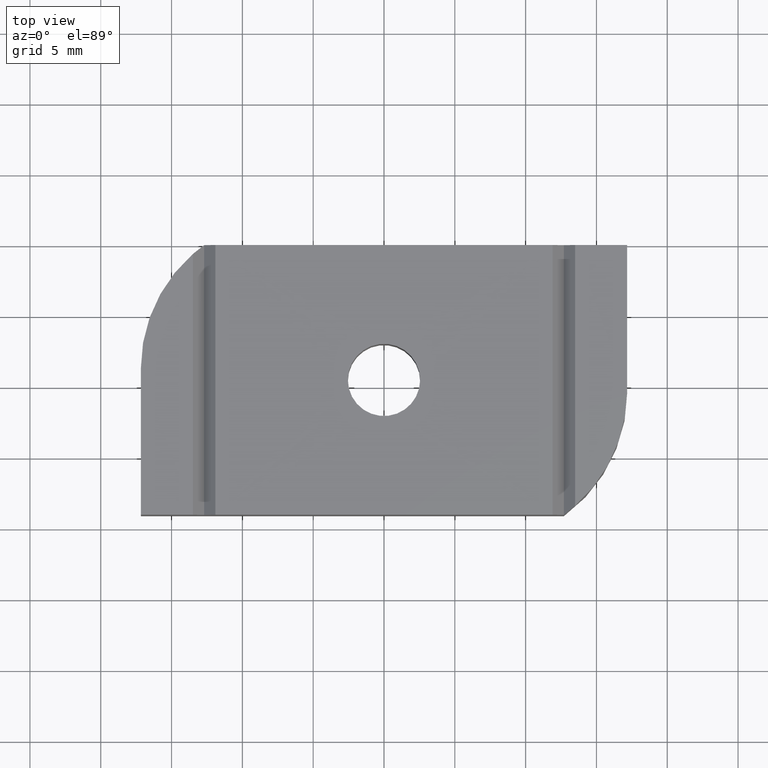
[diagram: clean part render]
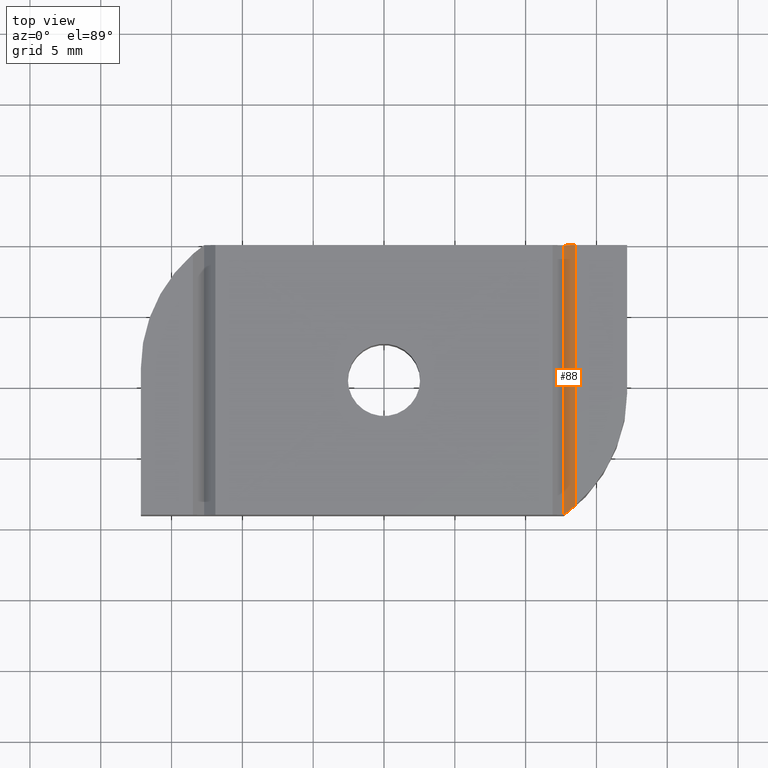
[diagram: same view with one face highlighted and labeled with its STEP entity id]
A machine part, top view. The second image highlights one B-rep face of the part: STEP entity #88.
In plain terms, the highlighted planar face has unit normal (0.7071, 0, -0.7071).
Its self-contained STEP definition (entity closure, byte-faithful):
#9 = ORIENTED_EDGE ( 'NONE', *, *, #91, .F. ) ;
#14 = ORIENTED_EDGE ( 'NONE', *, *, #138, .F. ) ;
#29 = ORIENTED_EDGE ( 'NONE', *, *, #102, .T. ) ;
#88 = ADVANCED_FACE ( 'NONE', ( #251 ), #645, .F. ) ;
#91 = EDGE_CURVE ( 'NONE', #2571, #2579, #252, .T. ) ;
#99 = EDGE_CURVE ( 'NONE', #2579, #2591, #2512, .T. ) ;
#102 = EDGE_CURVE ( 'NONE', #2585, #2591, #1170, .T. ) ;
#138 = EDGE_CURVE ( 'NONE', #2585, #2571, #2019, .T. ) ;
#251 = FACE_OUTER_BOUND ( 'NONE', #1161, .T. ) ;
#252 = LINE ( 'NONE', #678, #253 ) ;
#253 = VECTOR ( 'NONE', #682, 39.37007874015748100 ) ;
#645 = PLANE ( 'NONE',  #2524 ) ;
#650 = CARTESIAN_POINT ( 'NONE',  ( 0.5000000000000000000, 0.3750000000000000600, 0.08774999999999987000 ) ) ;
#673 = DIRECTION ( 'NONE',  ( 0.7071067811865515700, 0.0000000000000000000, -0.7071067811865434600 ) ) ;
#674 = DIRECTION ( 'NONE',  ( -0.7071067811865434600, 0.0000000000000000000, -0.7071067811865515700 ) ) ;
#678 = CARTESIAN_POINT ( 'NONE',  ( 0.5312499999999997800, 0.3750000000000000600, 0.1189999999999999900 ) ) ;
#682 = DIRECTION ( 'NONE',  ( -0.0000000000000000000, -1.000000000000000000, -0.0000000000000000000 ) ) ;
#990 = CARTESIAN_POINT ( 'NONE',  ( 0.5312499999999997800, -0.3501364502272287200, 0.1189999999999999900 ) ) ;
#993 = CARTESIAN_POINT ( 'NONE',  ( 0.5212276018830124300, -0.3589119345894123400, 0.1089776018830126100 ) ) ;
#994 = CARTESIAN_POINT ( 'NONE',  ( 0.5108032315010989600, -0.3672059138483087000, 0.09855323150109894500 ) ) ;
#995 = CARTESIAN_POINT ( 'NONE',  ( 0.5000000000000001100, -0.3750000000000000600, 0.08774999999999987000 ) ) ;
#999 = CARTESIAN_POINT ( 'NONE',  ( 0.5000000000000000000, 0.3750000000000000600, 0.08774999999999987000 ) ) ;
#1000 = DIRECTION ( 'NONE',  ( -0.0000000000000000000, -1.000000000000000000, -0.0000000000000000000 ) ) ;
#1057 = CARTESIAN_POINT ( 'NONE',  ( 0.5000000000000000000, 0.3750000000000000600, 0.08774999999999987000 ) ) ;
#1058 = DIRECTION ( 'NONE',  ( 0.7071067811865433500, 0.0000000000000000000, 0.7071067811865515700 ) ) ;
#1067 = CARTESIAN_POINT ( 'NONE',  ( 0.5312499999999997800, 0.3750000000000000600, 0.1189999999999999900 ) ) ;
#1078 = CARTESIAN_POINT ( 'NONE',  ( 0.5312499999999997800, -0.3501364502272287200, 0.1189999999999999900 ) ) ;
#1084 = CARTESIAN_POINT ( 'NONE',  ( 0.5000000000000000000, 0.3750000000000000600, 0.08774999999999987000 ) ) ;
#1088 = CARTESIAN_POINT ( 'NONE',  ( 0.5000000000000001100, -0.3750000000000000600, 0.08774999999999987000 ) ) ;
#1161 = EDGE_LOOP ( 'NONE', ( #9, #14, #29, #2642 ) ) ;
#1170 = LINE ( 'NONE', #999, #1990 ) ;
#1990 = VECTOR ( 'NONE', #1000, 39.37007874015748100 ) ;
#2012 = VECTOR ( 'NONE', #1058, 39.37007874015748900 ) ;
#2019 = LINE ( 'NONE', #1057, #2012 ) ;
#2512 =( BOUNDED_CURVE ( )  B_SPLINE_CURVE ( 3, ( #990, #993, #994, #995 ),
 .UNSPECIFIED., .F., .T. ) 
 B_SPLINE_CURVE_WITH_KNOTS ( ( 4, 4 ),
 ( 3.993226455637453500, 4.087405860915651200 ),
 .UNSPECIFIED. ) 
 CURVE ( )  GEOMETRIC_REPRESENTATION_ITEM ( )  RATIONAL_B_SPLINE_CURVE ( ( 1.000000000000000000, 0.9992609898761521900, 0.9992609898761521900, 1.000000000000000000 ) ) 
 REPRESENTATION_ITEM ( '' )  );
#2524 = AXIS2_PLACEMENT_3D ( 'NONE', #650, #673, #674 ) ;
#2571 = VERTEX_POINT ( 'NONE', #1067 ) ;
#2579 = VERTEX_POINT ( 'NONE', #1078 ) ;
#2585 = VERTEX_POINT ( 'NONE', #1084 ) ;
#2591 = VERTEX_POINT ( 'NONE', #1088 ) ;
#2642 = ORIENTED_EDGE ( 'NONE', *, *, #99, .F. ) ;